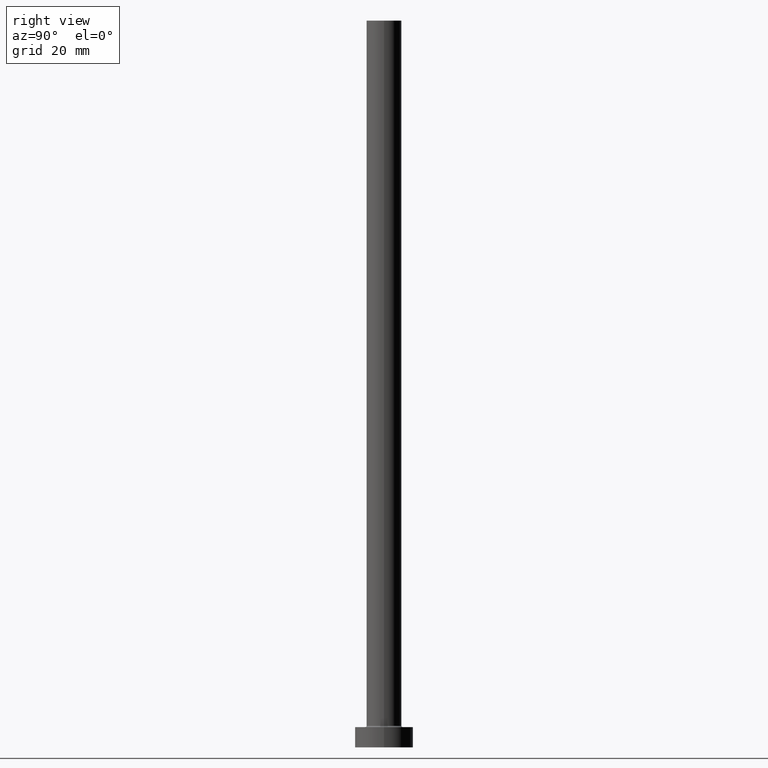
[diagram: clean part render]
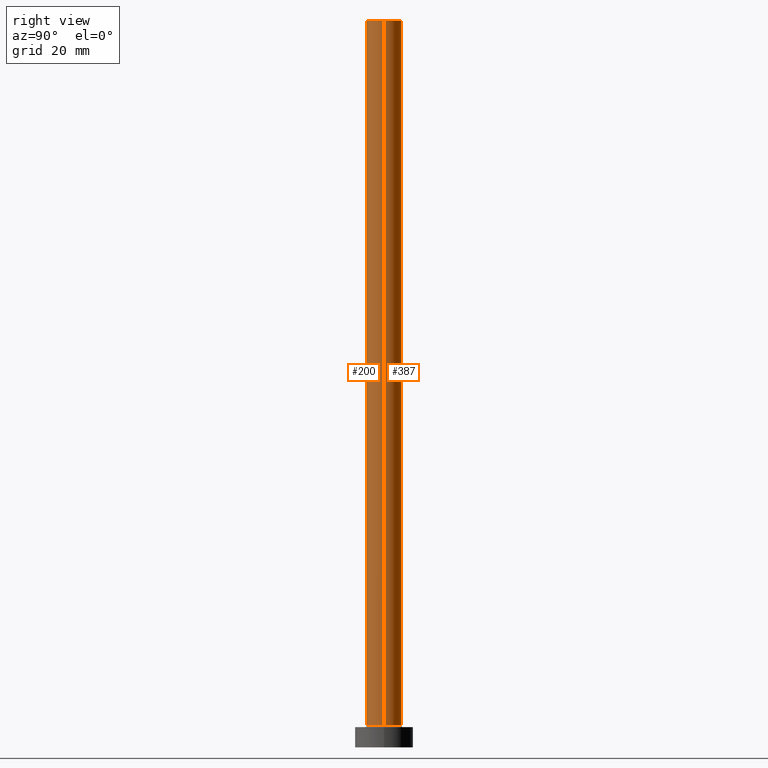
[diagram: same view with one multi-face feature highlighted, each face labeled with its STEP entity id]
A machine part, right view. The highlighted faces form ONE feature: a constant-radius fillet chain: 2 tangent blend faces with common blend radius 6 mm. The faces share edges in the B-rep.
Their STEP definitions:
[1] entity #200 (Cylinder):
#15 = FACE_OUTER_BOUND ( 'NONE', #344, .T. ) ;
#21 = EDGE_CURVE ( 'NONE', #431, #329, #215, .T. ) ;
#28 = EDGE_CURVE ( 'NONE', #266, #77, #401, .T. ) ;
#71 = CARTESIAN_POINT ( 'NONE',  ( -6.000000000000000888, 0.000000000000000000, 7.500000000000007105 ) ) ;
#76 = CARTESIAN_POINT ( 'NONE',  ( 6.000000000000000888, 7.347880794884120722E-16, 7.500000000000007105 ) ) ;
#77 = VERTEX_POINT ( 'NONE', #71 ) ;
#86 = CYLINDRICAL_SURFACE ( 'NONE', #236, 6.000000000000000888 ) ;
#99 = ORIENTED_EDGE ( 'NONE', *, *, #245, .F. ) ;
#113 = CARTESIAN_POINT ( 'NONE',  ( 0.000000000000000000, 0.000000000000000000, 250.0000000000000000 ) ) ;
#115 = CARTESIAN_POINT ( 'NONE',  ( 6.000000000000000888, 7.347880794884120722E-16, 250.0000000000000000 ) ) ;
#128 = CIRCLE ( 'NONE', #354, 6.000000000000000888 ) ;
#150 = DIRECTION ( 'NONE',  ( -0.000000000000000000, -0.000000000000000000, -1.000000000000000000 ) ) ;
#160 = DIRECTION ( 'NONE',  ( 1.000000000000000000, 0.000000000000000000, 0.000000000000000000 ) ) ;
#164 = VECTOR ( 'NONE', #150, 1000.000000000000000 ) ;
#166 = DIRECTION ( 'NONE',  ( -0.000000000000000000, -0.000000000000000000, -1.000000000000000000 ) ) ;
#183 = ORIENTED_EDGE ( 'NONE', *, *, #440, .T. ) ;
#198 = DIRECTION ( 'NONE',  ( 1.000000000000000000, 0.000000000000000000, 0.000000000000000000 ) ) ;
#200 = ADVANCED_FACE ( 'NONE', ( #15 ), #86, .T. ) ;
#215 = LINE ( 'NONE', #115, #164 ) ;
#224 = AXIS2_PLACEMENT_3D ( 'NONE', #295, #435, #160 ) ;
#227 = CARTESIAN_POINT ( 'NONE',  ( -6.000000000000000888, 0.000000000000000000, 250.0000000000000000 ) ) ;
#233 = CARTESIAN_POINT ( 'NONE',  ( 6.000000000000000888, 7.347880794884120722E-16, 250.0000000000000000 ) ) ;
#236 = AXIS2_PLACEMENT_3D ( 'NONE', #113, #166, #283 ) ;
#245 = EDGE_CURVE ( 'NONE', #266, #431, #308, .T. ) ;
#250 = CARTESIAN_POINT ( 'NONE',  ( -6.000000000000000888, 0.000000000000000000, 250.0000000000000000 ) ) ;
#266 = VERTEX_POINT ( 'NONE', #227 ) ;
#283 = DIRECTION ( 'NONE',  ( -1.000000000000000000, 0.000000000000000000, 0.000000000000000000 ) ) ;
#295 = CARTESIAN_POINT ( 'NONE',  ( 0.000000000000000000, 0.000000000000000000, 250.0000000000000000 ) ) ;
#308 = CIRCLE ( 'NONE', #224, 6.000000000000000888 ) ;
#318 = DIRECTION ( 'NONE',  ( -0.000000000000000000, -0.000000000000000000, -1.000000000000000000 ) ) ;
#329 = VERTEX_POINT ( 'NONE', #76 ) ;
#338 = DIRECTION ( 'NONE',  ( 0.000000000000000000, 0.000000000000000000, 1.000000000000000000 ) ) ;
#344 = EDGE_LOOP ( 'NONE', ( #385, #99, #350, #183 ) ) ;
#350 = ORIENTED_EDGE ( 'NONE', *, *, #28, .T. ) ;
#354 = AXIS2_PLACEMENT_3D ( 'NONE', #379, #338, #198 ) ;
#379 = CARTESIAN_POINT ( 'NONE',  ( 0.000000000000000000, 0.000000000000000000, 7.500000000000007105 ) ) ;
#385 = ORIENTED_EDGE ( 'NONE', *, *, #21, .F. ) ;
#401 = LINE ( 'NONE', #250, #453 ) ;
#431 = VERTEX_POINT ( 'NONE', #233 ) ;
#435 = DIRECTION ( 'NONE',  ( 0.000000000000000000, 0.000000000000000000, 1.000000000000000000 ) ) ;
#440 = EDGE_CURVE ( 'NONE', #77, #329, #128, .T. ) ;
#453 = VECTOR ( 'NONE', #318, 1000.000000000000000 ) ;
[2] entity #387 (Cylinder):
#19 = EDGE_CURVE ( 'NONE', #431, #266, #196, .T. ) ;
#21 = EDGE_CURVE ( 'NONE', #431, #329, #215, .T. ) ;
#28 = EDGE_CURVE ( 'NONE', #266, #77, #401, .T. ) ;
#32 = ORIENTED_EDGE ( 'NONE', *, *, #28, .F. ) ;
#34 = DIRECTION ( 'NONE',  ( -0.000000000000000000, -0.000000000000000000, -1.000000000000000000 ) ) ;
#42 = CYLINDRICAL_SURFACE ( 'NONE', #267, 6.000000000000000888 ) ;
#47 = FACE_OUTER_BOUND ( 'NONE', #243, .T. ) ;
#71 = CARTESIAN_POINT ( 'NONE',  ( -6.000000000000000888, 0.000000000000000000, 7.500000000000007105 ) ) ;
#76 = CARTESIAN_POINT ( 'NONE',  ( 6.000000000000000888, 7.347880794884120722E-16, 7.500000000000007105 ) ) ;
#77 = VERTEX_POINT ( 'NONE', #71 ) ;
#80 = CIRCLE ( 'NONE', #258, 6.000000000000000888 ) ;
#100 = EDGE_CURVE ( 'NONE', #329, #77, #80, .T. ) ;
#103 = DIRECTION ( 'NONE',  ( 1.000000000000000000, 0.000000000000000000, 0.000000000000000000 ) ) ;
#112 = CARTESIAN_POINT ( 'NONE',  ( 0.000000000000000000, 0.000000000000000000, 250.0000000000000000 ) ) ;
#115 = CARTESIAN_POINT ( 'NONE',  ( 6.000000000000000888, 7.347880794884120722E-16, 250.0000000000000000 ) ) ;
#150 = DIRECTION ( 'NONE',  ( -0.000000000000000000, -0.000000000000000000, -1.000000000000000000 ) ) ;
#163 = ORIENTED_EDGE ( 'NONE', *, *, #100, .T. ) ;
#164 = VECTOR ( 'NONE', #150, 1000.000000000000000 ) ;
#180 = DIRECTION ( 'NONE',  ( -1.000000000000000000, 0.000000000000000000, 0.000000000000000000 ) ) ;
#196 = CIRCLE ( 'NONE', #353, 6.000000000000000888 ) ;
#211 = CARTESIAN_POINT ( 'NONE',  ( 0.000000000000000000, 0.000000000000000000, 7.500000000000007105 ) ) ;
#215 = LINE ( 'NONE', #115, #164 ) ;
#220 = CARTESIAN_POINT ( 'NONE',  ( 0.000000000000000000, 0.000000000000000000, 250.0000000000000000 ) ) ;
#227 = CARTESIAN_POINT ( 'NONE',  ( -6.000000000000000888, 0.000000000000000000, 250.0000000000000000 ) ) ;
#233 = CARTESIAN_POINT ( 'NONE',  ( 6.000000000000000888, 7.347880794884120722E-16, 250.0000000000000000 ) ) ;
#237 = DIRECTION ( 'NONE',  ( 0.000000000000000000, 0.000000000000000000, 1.000000000000000000 ) ) ;
#243 = EDGE_LOOP ( 'NONE', ( #362, #315, #163, #32 ) ) ;
#250 = CARTESIAN_POINT ( 'NONE',  ( -6.000000000000000888, 0.000000000000000000, 250.0000000000000000 ) ) ;
#258 = AXIS2_PLACEMENT_3D ( 'NONE', #211, #237, #103 ) ;
#266 = VERTEX_POINT ( 'NONE', #227 ) ;
#267 = AXIS2_PLACEMENT_3D ( 'NONE', #112, #34, #180 ) ;
#315 = ORIENTED_EDGE ( 'NONE', *, *, #21, .T. ) ;
#318 = DIRECTION ( 'NONE',  ( -0.000000000000000000, -0.000000000000000000, -1.000000000000000000 ) ) ;
#329 = VERTEX_POINT ( 'NONE', #76 ) ;
#353 = AXIS2_PLACEMENT_3D ( 'NONE', #220, #434, #405 ) ;
#362 = ORIENTED_EDGE ( 'NONE', *, *, #19, .F. ) ;
#387 = ADVANCED_FACE ( 'NONE', ( #47 ), #42, .T. ) ;
#401 = LINE ( 'NONE', #250, #453 ) ;
#405 = DIRECTION ( 'NONE',  ( 1.000000000000000000, 0.000000000000000000, 0.000000000000000000 ) ) ;
#431 = VERTEX_POINT ( 'NONE', #233 ) ;
#434 = DIRECTION ( 'NONE',  ( 0.000000000000000000, 0.000000000000000000, 1.000000000000000000 ) ) ;
#453 = VECTOR ( 'NONE', #318, 1000.000000000000000 ) ;